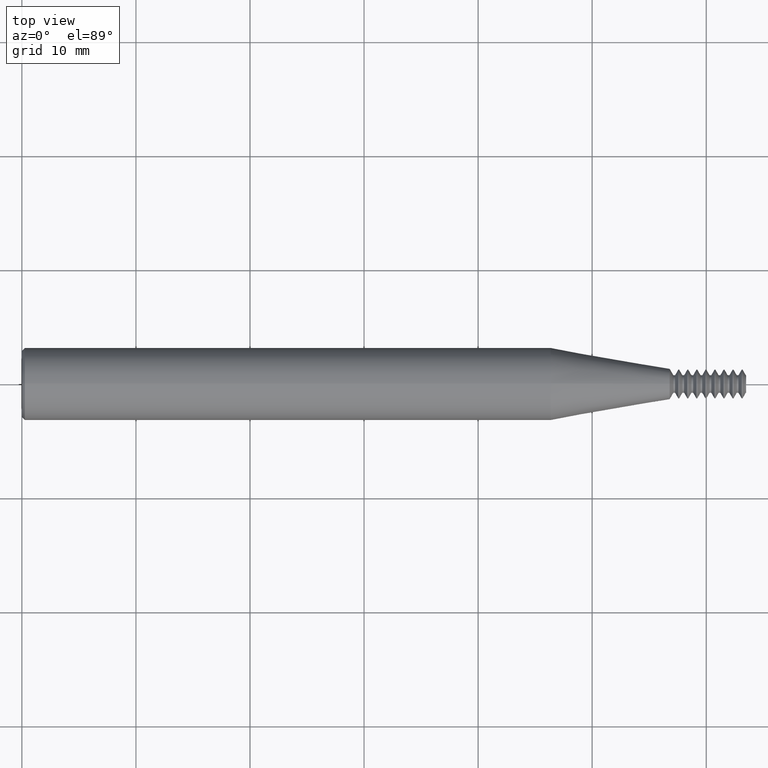
[diagram: clean part render]
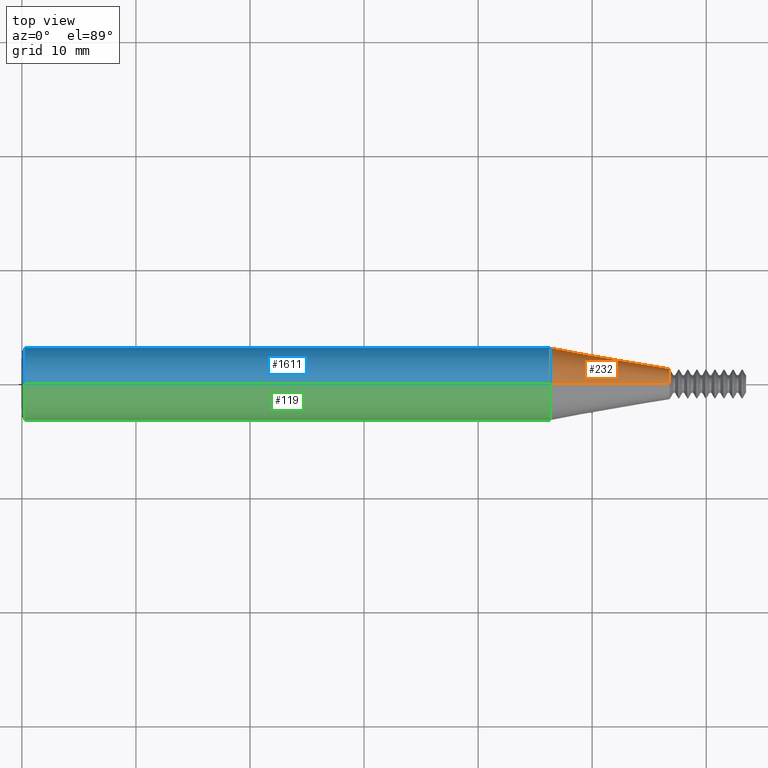
[diagram: same view with three faces highlighted in distinct colors, each labeled with its STEP entity id]
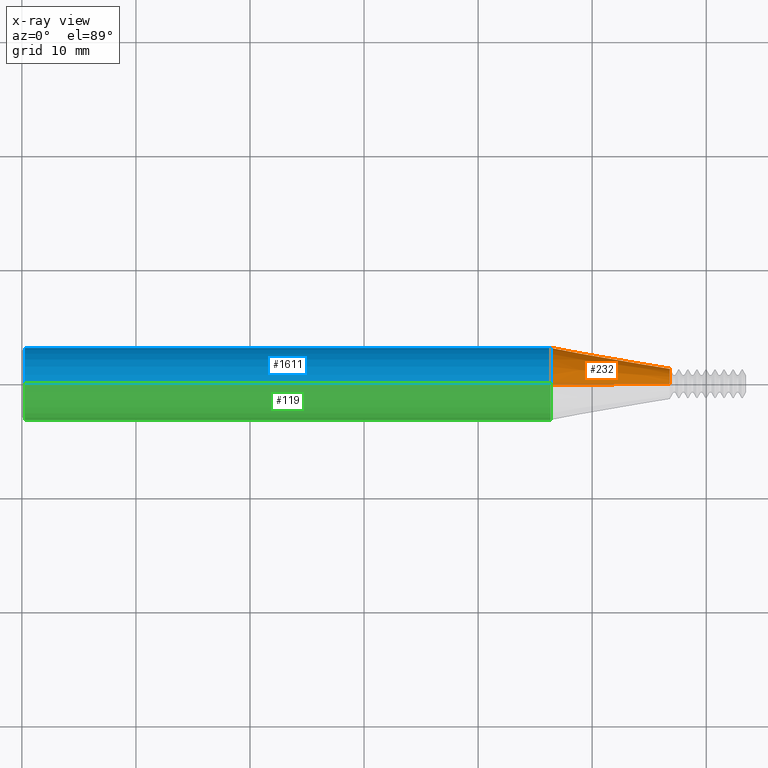
[diagram: x-ray of the same camera — body ghosted, the three highlighted faces saturated]
A machine part, top view with three faces highlighted in distinct colors.
The next image is the same camera in x-ray (body ghosted, the three faces saturated) — at least one of them is partly hidden behind the body in this view.
Their STEP definitions:

[orange] entity #232 — the highlighted conical surface has half-angle 10 deg.
#31 = ORIENTED_EDGE ( 'NONE', *, *, #1871, .T. ) ;
#150 = DIRECTION ( 'NONE',  ( 0.000000000000000000, 0.000000000000000000, 1.000000000000000000 ) ) ;
#232 = ADVANCED_FACE ( 'NONE', ( #479 ), #1301, .T. ) ;
#306 = VERTEX_POINT ( 'NONE', #1742 ) ;
#406 = ORIENTED_EDGE ( 'NONE', *, *, #670, .T. ) ;
#428 = CARTESIAN_POINT ( 'NONE',  ( 2.236000000000000210, 6.429395695523603968E-18, -0.05249999999999999806 ) ) ;
#464 = VECTOR ( 'NONE', #1947, 39.37007874015748143 ) ;
#479 = FACE_OUTER_BOUND ( 'NONE', #944, .T. ) ;
#612 = DIRECTION ( 'NONE',  ( 1.000000000000000000, -0.000000000000000000, -0.000000000000000000 ) ) ;
#670 = EDGE_CURVE ( 'NONE', #1141, #306, #1928, .T. ) ;
#677 = CARTESIAN_POINT ( 'NONE',  ( 1.825682760350659795, 0.000000000000000000, -0.1248500000000000026 ) ) ;
#766 = CARTESIAN_POINT ( 'NONE',  ( 2.236000000000000210, 0.000000000000000000, 0.000000000000000000 ) ) ;
#876 = LINE ( 'NONE', #1012, #464 ) ;
#883 = LINE ( 'NONE', #428, #1324 ) ;
#920 = DIRECTION ( 'NONE',  ( -0.9848077530122080203, 2.126576849575776537E-17, -0.1736481776669307475 ) ) ;
#936 = VERTEX_POINT ( 'NONE', #1326 ) ;
#944 = EDGE_LOOP ( 'NONE', ( #1719, #31, #406, #1939 ) ) ;
#1012 = CARTESIAN_POINT ( 'NONE',  ( 2.236000000000000210, 0.000000000000000000, 0.05249999999999999806 ) ) ;
#1072 = CARTESIAN_POINT ( 'NONE',  ( 2.236000000000000210, 0.000000000000000000, 0.05249999999999999806 ) ) ;
#1119 = AXIS2_PLACEMENT_3D ( 'NONE', #1273, #1893, #1398 ) ;
#1141 = VERTEX_POINT ( 'NONE', #677 ) ;
#1204 = AXIS2_PLACEMENT_3D ( 'NONE', #1750, #1415, #150 ) ;
#1273 = CARTESIAN_POINT ( 'NONE',  ( 1.825682760350659795, 0.000000000000000000, 0.000000000000000000 ) ) ;
#1294 = EDGE_CURVE ( 'NONE', #1417, #306, #876, .T. ) ;
#1301 = CONICAL_SURFACE ( 'NONE', #1204, 0.05249999999999999806, 0.1745329251994333641 ) ;
#1324 = VECTOR ( 'NONE', #920, 39.37007874015748143 ) ;
#1326 = CARTESIAN_POINT ( 'NONE',  ( 2.236000000000000210, 1.085955549143915332E-17, -0.05249999999999999806 ) ) ;
#1398 = DIRECTION ( 'NONE',  ( 0.000000000000000000, 0.000000000000000000, -1.000000000000000000 ) ) ;
#1415 = DIRECTION ( 'NONE',  ( -1.000000000000000000, 0.000000000000000000, 0.000000000000000000 ) ) ;
#1417 = VERTEX_POINT ( 'NONE', #1072 ) ;
#1429 = CIRCLE ( 'NONE', #1591, 0.05249999999999999806 ) ;
#1473 = EDGE_CURVE ( 'NONE', #936, #1417, #1429, .T. ) ;
#1538 = DIRECTION ( 'NONE',  ( 0.000000000000000000, 0.000000000000000000, -1.000000000000000000 ) ) ;
#1591 = AXIS2_PLACEMENT_3D ( 'NONE', #766, #612, #1538 ) ;
#1719 = ORIENTED_EDGE ( 'NONE', *, *, #1473, .F. ) ;
#1742 = CARTESIAN_POINT ( 'NONE',  ( 1.825682760350659795, 1.528971528735470422E-17, 0.1248500000000000026 ) ) ;
#1750 = CARTESIAN_POINT ( 'NONE',  ( 2.236000000000000210, 0.000000000000000000, 0.000000000000000000 ) ) ;
#1871 = EDGE_CURVE ( 'NONE', #936, #1141, #883, .T. ) ;
#1893 = DIRECTION ( 'NONE',  ( 1.000000000000000000, -0.000000000000000000, -0.000000000000000000 ) ) ;
#1928 = CIRCLE ( 'NONE', #1119, 0.1248500000000000026 ) ;
#1939 = ORIENTED_EDGE ( 'NONE', *, *, #1294, .F. ) ;
#1947 = DIRECTION ( 'NONE',  ( -0.9848077530122080203, 0.000000000000000000, 0.1736481776669307475 ) ) ;

[blue] entity #1611 — the highlighted cylindrical surface (edge-blend (fillet) strip) has radius 3.1712 mm, axis along (1, -0, -0).
#111 = DIRECTION ( 'NONE',  ( 1.000000000000000000, -0.000000000000000000, -0.000000000000000000 ) ) ;
#122 = CARTESIAN_POINT ( 'NONE',  ( 0.009999999999999620304, 1.528971528735470422E-17, 0.1248500000000000026 ) ) ;
#161 = CARTESIAN_POINT ( 'NONE',  ( 0.009999999999999620304, 0.000000000000000000, -0.1248500000000000026 ) ) ;
#187 = CARTESIAN_POINT ( 'NONE',  ( 2.500000000000000000, 1.528971528735470422E-17, 0.1248500000000000026 ) ) ;
#229 = VERTEX_POINT ( 'NONE', #161 ) ;
#260 = EDGE_CURVE ( 'NONE', #229, #1141, #955, .T. ) ;
#306 = VERTEX_POINT ( 'NONE', #1742 ) ;
#381 = AXIS2_PLACEMENT_3D ( 'NONE', #812, #1609, #1600 ) ;
#463 = ORIENTED_EDGE ( 'NONE', *, *, #260, .F. ) ;
#491 = ORIENTED_EDGE ( 'NONE', *, *, #1051, .T. ) ;
#614 = VERTEX_POINT ( 'NONE', #122 ) ;
#628 = AXIS2_PLACEMENT_3D ( 'NONE', #1187, #111, #1829 ) ;
#670 = EDGE_CURVE ( 'NONE', #1141, #306, #1928, .T. ) ;
#677 = CARTESIAN_POINT ( 'NONE',  ( 1.825682760350659795, 0.000000000000000000, -0.1248500000000000026 ) ) ;
#690 = CIRCLE ( 'NONE', #628, 0.1248500000000000026 ) ;
#691 = ORIENTED_EDGE ( 'NONE', *, *, #670, .F. ) ;
#789 = CARTESIAN_POINT ( 'NONE',  ( 2.500000000000000000, 0.000000000000000000, -0.1248500000000000026 ) ) ;
#812 = CARTESIAN_POINT ( 'NONE',  ( 2.500000000000000000, 0.000000000000000000, 0.000000000000000000 ) ) ;
#835 = EDGE_LOOP ( 'NONE', ( #491, #1561, #691, #463 ) ) ;
#946 = FACE_OUTER_BOUND ( 'NONE', #835, .T. ) ;
#955 = LINE ( 'NONE', #789, #1988 ) ;
#1051 = EDGE_CURVE ( 'NONE', #229, #614, #690, .T. ) ;
#1119 = AXIS2_PLACEMENT_3D ( 'NONE', #1273, #1893, #1398 ) ;
#1141 = VERTEX_POINT ( 'NONE', #677 ) ;
#1187 = CARTESIAN_POINT ( 'NONE',  ( 0.009999999999999620304, 0.000000000000000000, 0.000000000000000000 ) ) ;
#1249 = LINE ( 'NONE', #187, #1885 ) ;
#1273 = CARTESIAN_POINT ( 'NONE',  ( 1.825682760350659795, 0.000000000000000000, 0.000000000000000000 ) ) ;
#1398 = DIRECTION ( 'NONE',  ( 0.000000000000000000, 0.000000000000000000, -1.000000000000000000 ) ) ;
#1561 = ORIENTED_EDGE ( 'NONE', *, *, #1597, .T. ) ;
#1567 = CYLINDRICAL_SURFACE ( 'NONE', #381, 0.1248500000000000026 ) ;
#1597 = EDGE_CURVE ( 'NONE', #614, #306, #1249, .T. ) ;
#1600 = DIRECTION ( 'NONE',  ( 0.000000000000000000, 0.000000000000000000, -1.000000000000000000 ) ) ;
#1609 = DIRECTION ( 'NONE',  ( 1.000000000000000000, -0.000000000000000000, -0.000000000000000000 ) ) ;
#1611 = ADVANCED_FACE ( 'NONE', ( #946 ), #1567, .T. ) ;
#1742 = CARTESIAN_POINT ( 'NONE',  ( 1.825682760350659795, 1.528971528735470422E-17, 0.1248500000000000026 ) ) ;
#1752 = DIRECTION ( 'NONE',  ( 1.000000000000000000, -0.000000000000000000, -0.000000000000000000 ) ) ;
#1829 = DIRECTION ( 'NONE',  ( 0.000000000000000000, 0.000000000000000000, 1.000000000000000000 ) ) ;
#1885 = VECTOR ( 'NONE', #1752, 39.37007874015748143 ) ;
#1893 = DIRECTION ( 'NONE',  ( 1.000000000000000000, -0.000000000000000000, -0.000000000000000000 ) ) ;
#1928 = CIRCLE ( 'NONE', #1119, 0.1248500000000000026 ) ;
#1988 = VECTOR ( 'NONE', #2023, 39.37007874015748143 ) ;
#2023 = DIRECTION ( 'NONE',  ( 1.000000000000000000, -0.000000000000000000, -0.000000000000000000 ) ) ;

[green] entity #119 — the highlighted cylindrical surface (edge-blend (fillet) strip) has radius 3.1712 mm, axis along (1, -0, -0).
#114 = FACE_OUTER_BOUND ( 'NONE', #626, .T. ) ;
#119 = ADVANCED_FACE ( 'NONE', ( #114 ), #611, .T. ) ;
#122 = CARTESIAN_POINT ( 'NONE',  ( 0.009999999999999620304, 1.528971528735470422E-17, 0.1248500000000000026 ) ) ;
#124 = DIRECTION ( 'NONE',  ( 0.000000000000000000, 0.000000000000000000, -1.000000000000000000 ) ) ;
#161 = CARTESIAN_POINT ( 'NONE',  ( 0.009999999999999620304, 0.000000000000000000, -0.1248500000000000026 ) ) ;
#187 = CARTESIAN_POINT ( 'NONE',  ( 2.500000000000000000, 1.528971528735470422E-17, 0.1248500000000000026 ) ) ;
#229 = VERTEX_POINT ( 'NONE', #161 ) ;
#260 = EDGE_CURVE ( 'NONE', #229, #1141, #955, .T. ) ;
#306 = VERTEX_POINT ( 'NONE', #1742 ) ;
#469 = EDGE_CURVE ( 'NONE', #614, #229, #918, .T. ) ;
#496 = ORIENTED_EDGE ( 'NONE', *, *, #469, .T. ) ;
#611 = CYLINDRICAL_SURFACE ( 'NONE', #1856, 0.1248500000000000026 ) ;
#614 = VERTEX_POINT ( 'NONE', #122 ) ;
#626 = EDGE_LOOP ( 'NONE', ( #1712, #496, #1241, #1568 ) ) ;
#677 = CARTESIAN_POINT ( 'NONE',  ( 1.825682760350659795, 0.000000000000000000, -0.1248500000000000026 ) ) ;
#753 = AXIS2_PLACEMENT_3D ( 'NONE', #1486, #1009, #986 ) ;
#789 = CARTESIAN_POINT ( 'NONE',  ( 2.500000000000000000, 0.000000000000000000, -0.1248500000000000026 ) ) ;
#891 = DIRECTION ( 'NONE',  ( 1.000000000000000000, -0.000000000000000000, -0.000000000000000000 ) ) ;
#918 = CIRCLE ( 'NONE', #753, 0.1248500000000000026 ) ;
#955 = LINE ( 'NONE', #789, #1988 ) ;
#986 = DIRECTION ( 'NONE',  ( 0.000000000000000000, 0.000000000000000000, 1.000000000000000000 ) ) ;
#993 = AXIS2_PLACEMENT_3D ( 'NONE', #1206, #891, #1991 ) ;
#1009 = DIRECTION ( 'NONE',  ( 1.000000000000000000, -0.000000000000000000, -0.000000000000000000 ) ) ;
#1025 = EDGE_CURVE ( 'NONE', #306, #1141, #1705, .T. ) ;
#1141 = VERTEX_POINT ( 'NONE', #677 ) ;
#1206 = CARTESIAN_POINT ( 'NONE',  ( 1.825682760350659795, 0.000000000000000000, 0.000000000000000000 ) ) ;
#1227 = CARTESIAN_POINT ( 'NONE',  ( 2.500000000000000000, 0.000000000000000000, 0.000000000000000000 ) ) ;
#1241 = ORIENTED_EDGE ( 'NONE', *, *, #260, .T. ) ;
#1249 = LINE ( 'NONE', #187, #1885 ) ;
#1373 = DIRECTION ( 'NONE',  ( 1.000000000000000000, -0.000000000000000000, -0.000000000000000000 ) ) ;
#1486 = CARTESIAN_POINT ( 'NONE',  ( 0.009999999999999620304, 0.000000000000000000, 0.000000000000000000 ) ) ;
#1568 = ORIENTED_EDGE ( 'NONE', *, *, #1025, .F. ) ;
#1597 = EDGE_CURVE ( 'NONE', #614, #306, #1249, .T. ) ;
#1705 = CIRCLE ( 'NONE', #993, 0.1248500000000000026 ) ;
#1712 = ORIENTED_EDGE ( 'NONE', *, *, #1597, .F. ) ;
#1742 = CARTESIAN_POINT ( 'NONE',  ( 1.825682760350659795, 1.528971528735470422E-17, 0.1248500000000000026 ) ) ;
#1752 = DIRECTION ( 'NONE',  ( 1.000000000000000000, -0.000000000000000000, -0.000000000000000000 ) ) ;
#1856 = AXIS2_PLACEMENT_3D ( 'NONE', #1227, #1373, #124 ) ;
#1885 = VECTOR ( 'NONE', #1752, 39.37007874015748143 ) ;
#1988 = VECTOR ( 'NONE', #2023, 39.37007874015748143 ) ;
#1991 = DIRECTION ( 'NONE',  ( 0.000000000000000000, 0.000000000000000000, -1.000000000000000000 ) ) ;
#2023 = DIRECTION ( 'NONE',  ( 1.000000000000000000, -0.000000000000000000, -0.000000000000000000 ) ) ;